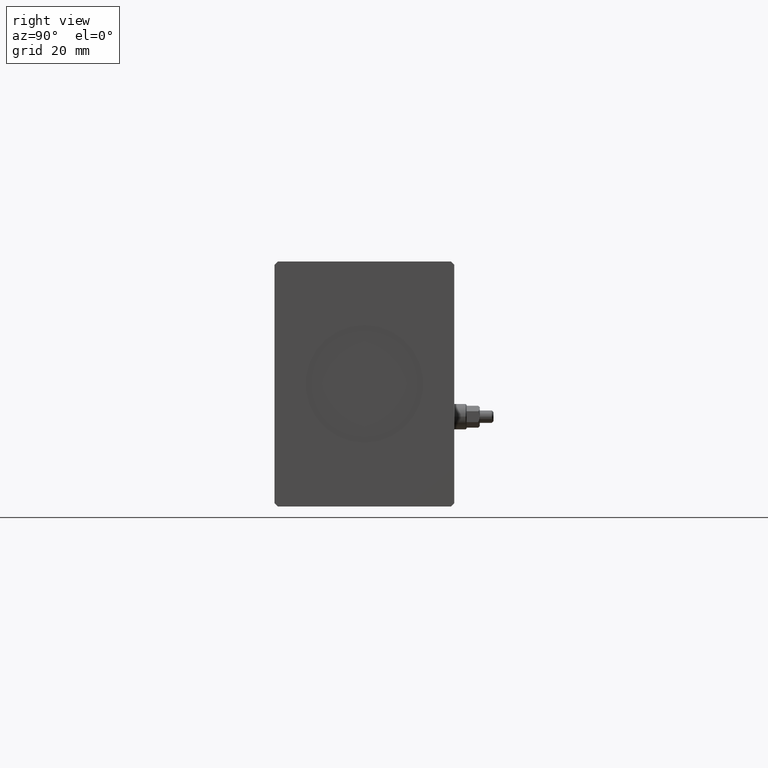
[diagram: clean part render]
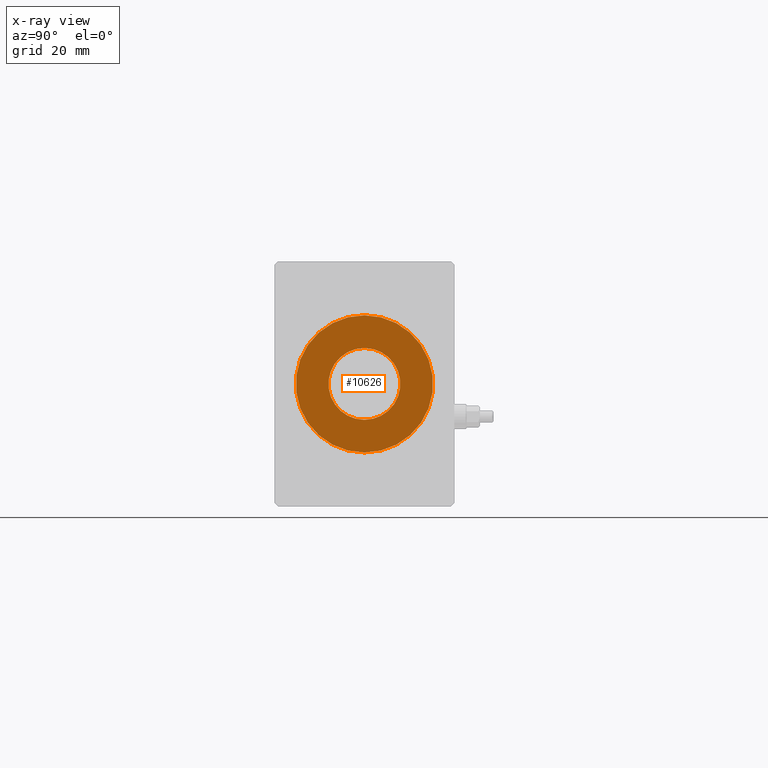
[diagram: x-ray — body ghosted, one internal face saturated and labeled with its STEP entity id]
A machine part, right view, then the same camera in x-ray: the body is ghosted and one INTERNAL B-rep face — a face not visible from any outside direction — is saturated and labeled: STEP entity #10626.
In plain terms, the highlighted planar face has unit normal (-1, 0, 0).
Its self-contained STEP definition (entity closure, byte-faithful):
#594 = DIRECTION ( 'NONE',  ( -0.000000000000000000, 0.000000000000000000, 1.000000000000000000 ) ) ;
#5686 = CIRCLE ( 'NONE', #36169, 21.00000000000000000 ) ;
#8668 = CIRCLE ( 'NONE', #12056, 21.00000000000000000 ) ;
#9958 = CIRCLE ( 'NONE', #41792, 11.00000000000000000 ) ;
#10155 = EDGE_CURVE ( 'NONE', #29194, #32523, #5686, .T. ) ;
#10339 = ORIENTED_EDGE ( 'NONE', *, *, #10155, .F. ) ;
#10626 = ADVANCED_FACE ( 'NONE', ( #40839, #37433 ), #40415, .F. ) ;
#12027 = CIRCLE ( 'NONE', #14748, 11.00000000000000000 ) ;
#12056 = AXIS2_PLACEMENT_3D ( 'NONE', #27137, #40085, #16973 ) ;
#13312 = DIRECTION ( 'NONE',  ( 0.000000000000000000, 0.000000000000000000, 1.000000000000000000 ) ) ;
#14739 = CARTESIAN_POINT ( 'NONE',  ( 0.000000000000000000, 0.000000000000000000, 0.000000000000000000 ) ) ;
#14748 = AXIS2_PLACEMENT_3D ( 'NONE', #19180, #32119, #20002 ) ;
#15578 = ORIENTED_EDGE ( 'NONE', *, *, #41183, .T. ) ;
#15660 = CARTESIAN_POINT ( 'NONE',  ( -21.00000000000000000, 0.000000000000000000, 0.000000000000000000 ) ) ;
#16973 = DIRECTION ( 'NONE',  ( 1.000000000000000000, 0.000000000000000000, 0.000000000000000000 ) ) ;
#17713 = DIRECTION ( 'NONE',  ( 1.000000000000000000, 0.000000000000000000, -0.000000000000000000 ) ) ;
#17868 = CARTESIAN_POINT ( 'NONE',  ( 11.00000000000000000, 1.347111479062088405E-15, 0.000000000000000000 ) ) ;
#19180 = CARTESIAN_POINT ( 'NONE',  ( 0.000000000000000000, 0.000000000000000000, 0.000000000000000000 ) ) ;
#20002 = DIRECTION ( 'NONE',  ( 1.000000000000000000, 0.000000000000000000, 0.000000000000000000 ) ) ;
#22641 = AXIS2_PLACEMENT_3D ( 'NONE', #14739, #31277, #17713 ) ;
#22705 = VERTEX_POINT ( 'NONE', #37608 ) ;
#23087 = CARTESIAN_POINT ( 'NONE',  ( 0.000000000000000000, 0.000000000000000000, 0.000000000000000000 ) ) ;
#27137 = CARTESIAN_POINT ( 'NONE',  ( 0.000000000000000000, 0.000000000000000000, 0.000000000000000000 ) ) ;
#28813 = DIRECTION ( 'NONE',  ( 1.000000000000000000, 0.000000000000000000, 0.000000000000000000 ) ) ;
#29194 = VERTEX_POINT ( 'NONE', #15660 ) ;
#29633 = VERTEX_POINT ( 'NONE', #17868 ) ;
#29858 = CARTESIAN_POINT ( 'NONE',  ( 21.00000000000000000, 2.571758278209441661E-15, 0.000000000000000000 ) ) ;
#31277 = DIRECTION ( 'NONE',  ( 0.000000000000000000, 0.000000000000000000, 1.000000000000000000 ) ) ;
#32005 = DIRECTION ( 'NONE',  ( 1.000000000000000000, 0.000000000000000000, 0.000000000000000000 ) ) ;
#32119 = DIRECTION ( 'NONE',  ( -0.000000000000000000, 0.000000000000000000, 1.000000000000000000 ) ) ;
#32245 = EDGE_LOOP ( 'NONE', ( #35832, #15578 ) ) ;
#32249 = EDGE_CURVE ( 'NONE', #32523, #29194, #8668, .T. ) ;
#32523 = VERTEX_POINT ( 'NONE', #29858 ) ;
#33234 = EDGE_CURVE ( 'NONE', #22705, #29633, #9958, .T. ) ;
#35832 = ORIENTED_EDGE ( 'NONE', *, *, #33234, .T. ) ;
#36056 = EDGE_LOOP ( 'NONE', ( #10339, #39495 ) ) ;
#36169 = AXIS2_PLACEMENT_3D ( 'NONE', #23087, #13312, #28813 ) ;
#37433 = FACE_BOUND ( 'NONE', #32245, .T. ) ;
#37608 = CARTESIAN_POINT ( 'NONE',  ( -11.00000000000000000, 0.000000000000000000, 0.000000000000000000 ) ) ;
#39007 = CARTESIAN_POINT ( 'NONE',  ( 0.000000000000000000, 0.000000000000000000, 0.000000000000000000 ) ) ;
#39495 = ORIENTED_EDGE ( 'NONE', *, *, #32249, .F. ) ;
#40085 = DIRECTION ( 'NONE',  ( 0.000000000000000000, 0.000000000000000000, 1.000000000000000000 ) ) ;
#40415 = PLANE ( 'NONE',  #22641 ) ;
#40839 = FACE_OUTER_BOUND ( 'NONE', #36056, .T. ) ;
#41183 = EDGE_CURVE ( 'NONE', #29633, #22705, #12027, .T. ) ;
#41792 = AXIS2_PLACEMENT_3D ( 'NONE', #39007, #594, #32005 ) ;